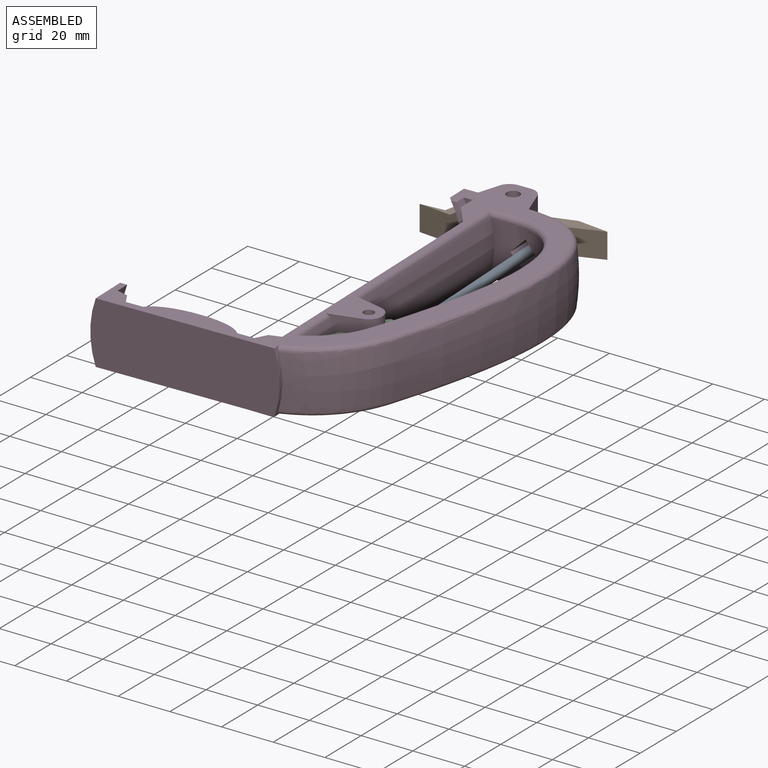
[diagram: assembled view]
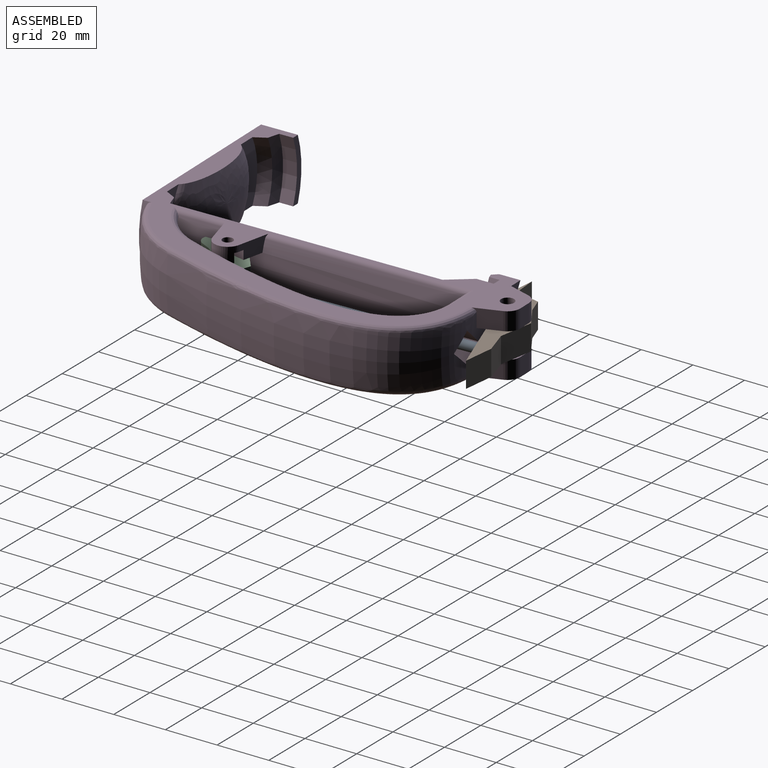
[diagram: assembled view, second angle]
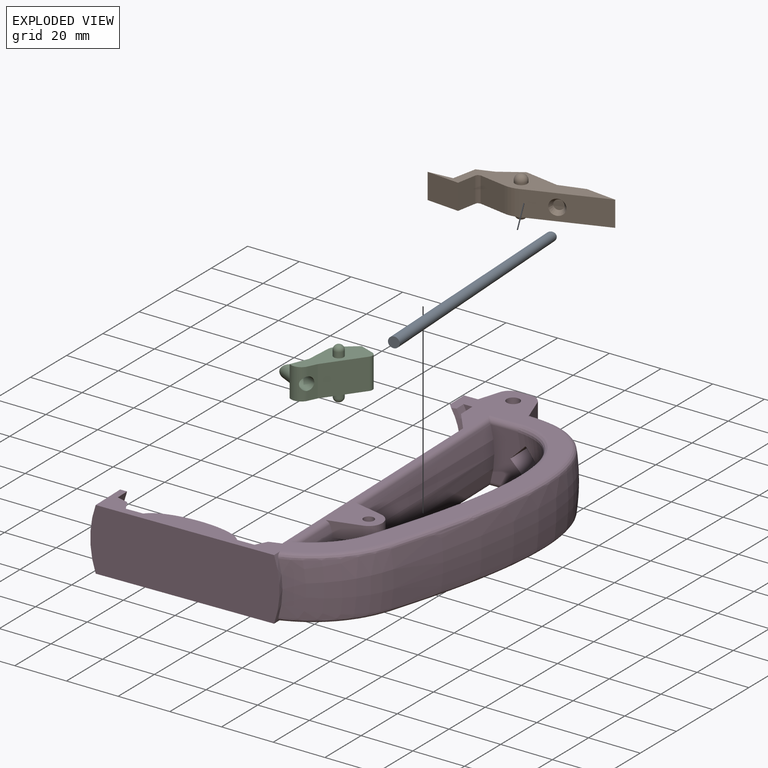
[diagram: exploded view]
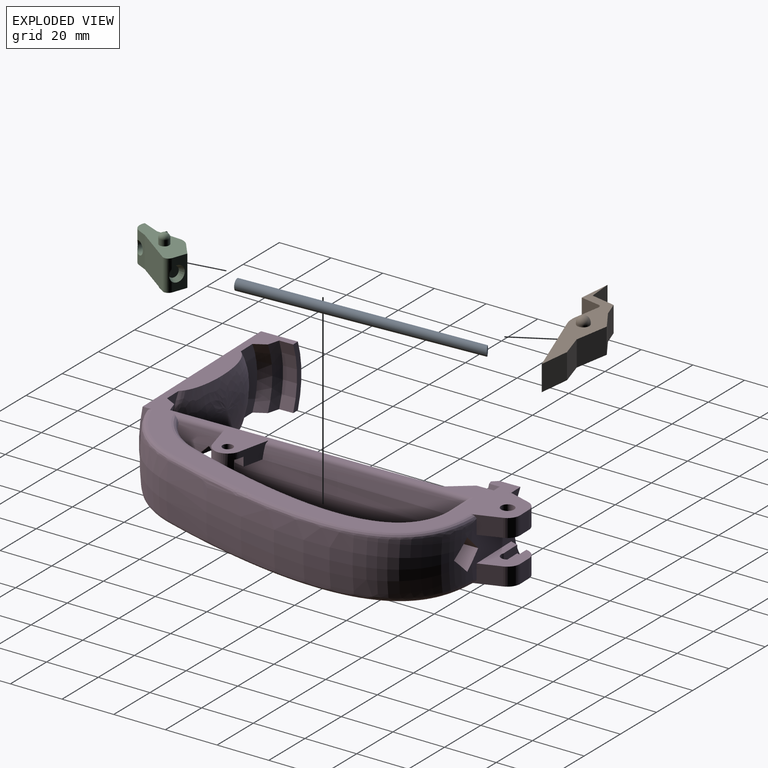
[diagram: exploded view, second angle]
ASSEMBLY  parts=4 mates=4
PART A: 3 faces, bbox 4.7x94.7x4.1 mm
  f0: plane 4.14x4.11mm, normal (0.11,-0.99,0), area 13.4mm2, adj f2
  f1: plane 3.69x3.33mm, normal (-0.43,0.9,0), area 10.7mm2, adj f2
  f2: bspline ~94.74x4.72mm, area 1122.5mm2, adj f0,f1
PART B: 24 faces, bbox 58.9x22.8x15.9 mm
  f0: plane 9.85x0.98mm, normal (0.36,-0.93,0), area 10.4mm2, adj f1,f13,f14,f15
  f1: plane 10.64x9.85mm, normal (-0.08,-1,0), area 105.1mm2, adj f0,f2,f14,f15
  f2: cylinder r=10mm len=9.85mm, axis (0,0,-1), area 51.6mm2, adj f1,f3,f14,f15
  f3: plane 28.57x13.61mm, normal (0.43,-0.9,0), area 283.5mm2, adj f2,f4,f14,f15,f22
  f4: plane 12.05x9.85mm, normal (0.02,1,0), area 118.7mm2, adj f3,f5,f14,f15
  f5: plane 9.85x9.24mm, normal (-0.38,0.93,0), area 98.4mm2, adj f4,f6,f14,f15
  f6: plane 13.49x9.85mm, normal (0.08,1,0), area 133.3mm2, adj f5,f7,f14,f15
  f7: plane 9.85x7.76mm, normal (-0.62,0.79,0), area 97.1mm2, adj f6,f8,f14,f15
  f8: plane 9.85x6.03mm, normal (-0.41,0.91,0), area 65.3mm2, adj f7,f9,f14,f15
  f9: plane 9.85x9.63mm, normal (-0.99,0.11,0), area 95.5mm2, adj f8,f10,f14,f15
  f10: plane 9.85x9.23mm, normal (-0.17,0.98,0), area 92.3mm2, adj f9,f11,f14,f15
  f11: plane 12.63x9.85mm, normal (0,-1,0), area 124.4mm2, adj f10,f12,f14,f15
  f12: plane 9.85x7.7mm, normal (1,-0.09,0), area 76.2mm2, adj f11,f13,f14,f15
  f13: plane 9.85x0.73mm, normal (0.94,-0.35,0), area 7.7mm2, adj f0,f12,f14,f15
  f14: plane 58.87x22.81mm, normal (0,0,1), area 342.6mm2, adj f0,f1,f2,f3,f4,f5,f6,f7
  f15: plane 58.87x22.81mm, normal (0,0,-1), area 342.6mm2, adj f0,f1,f2,f3,f4,f5,f6,f7
  f16: cylinder r=2.35mm len=4.7mm, axis (0,0,1), area 10.3mm2, adj f15,f18
  f17: plane 0.1x0.1mm, normal (0,0,-1), area 0mm2, adj f18
  f18: torus R=0.05mm, axis (0,0,-1), area 34.4mm2, adj f16,f17
  f19: cylinder r=2.35mm len=4.7mm, axis (0,0,-1), area 10.3mm2, adj f14,f21
  f20: plane 0.1x0.1mm, normal (0,0,1), area 0mm2, adj f21
  f21: torus R=0.05mm, axis (0,0,1), area 34.4mm2, adj f19,f20
  f22: cone r=3mm half-angle=30deg, axis (0.43,-0.9,0), area 35.2mm2, adj f3,f23
  f23: plane 3.69x3.33mm, normal (0.43,-0.9,0), area 10.7mm2, adj f22
PART C: 24 faces, bbox 15.8x27.5x20.3 mm
  f0: plane 12x5.91mm, normal (-0.11,0.99,0), area 46.4mm2, adj f1,f7,f8,f9,f22
  f1: plane 12x6.53mm, normal (-0.9,0.44,0), area 87mm2, adj f0,f8,f9,f14
  f2: plane 12x8.6mm, normal (-0.93,-0.38,0), area 111.4mm2, adj f3,f8,f9,f14
  f3: plane 12.07x7.37mm, normal (-1,-0.06,0), area 59.3mm2, adj f2,f4,f8,f9,f10
  f4: plane 12x0.36mm, normal (0,-1,0), area 4.4mm2, adj f3,f8,f9,f15
  f5: plane 12.29x4.1mm, normal (1,0,0), area 36mm2, adj f6,f8,f9,f13,f15
  f6: plane 16.95x12mm, normal (0.98,-0.18,0), area 206.8mm2, adj f5,f7,f8,f9
  f7: cylinder r=2mm len=12mm, axis (0,0,-1), area 41.4mm2, adj f0,f6,f8,f9,f22
  f8: plane 27.13x11.78mm, normal (0,0,1), area 186mm2, adj f0,f1,f2,f3,f4,f5,f6,f7
  f9: plane 27.13x11.78mm, normal (0,0,-1), area 186mm2, adj f0,f1,f2,f3,f4,f5,f6,f7
  f10: cylinder r=3mm len=8.03mm, axis (-1,0,0), area 91.6mm2, adj f3,f11
  f11: plane 6x6mm, normal (-0.71,0.71,0), area 12.2mm2, adj f10,f12
  f12: cylinder r=2.5mm len=7.5mm, axis (-1,0,0), area 78.5mm2, adj f11,f13
  f13: cylinder r=2.5mm len=5.26mm, axis (-1,-0.06,0), area 67.8mm2, adj f5,f12,f15
  f14: cylinder r=5mm len=12mm, axis (0,0,-1), area 50.3mm2, adj f1,f2,f8,f9
  f15: cylinder r=4mm len=12mm, axis (0,0,-1), area 68.4mm2, adj f4,f5,f8,f9,f13
  f16: plane 0.25x0.25mm, normal (0,0,-1), area 0mm2, adj f20
  f17: cylinder r=1.93mm len=3.85mm, axis (0,0,-1), area 26.6mm2, adj f9,f20
  f18: cylinder r=1.93mm len=3.85mm, axis (0,0,-1), area 26.6mm2, adj f8,f21
  f19: plane 0.25x0.25mm, normal (0,0,1), area 0mm2, adj f21
  f20: torus R=0.12mm, axis (0,0,1), area 22.6mm2, adj f16,f17
  f21: torus R=0.12mm, axis (0,0,1), area 22.6mm2, adj f18,f19
  f22: cone r=3mm half-angle=25deg, axis (-0.11,0.99,0), area 35.1mm2, adj f0,f7,f23
  f23: plane 4.13x4.11mm, normal (-0.11,0.99,0), area 13.4mm2, adj f22
PART D: 91 faces, bbox 197.8x230.8x128.9 mm
  f0: plane 12.2x5.93mm, normal (0.24,0.97,0), area 56.7mm2, adj f1,f5,f7,f8,f9,f88,f89,f90
  f1: plane 4.97x4.74mm, normal (0,0,-1), area 13.1mm2, adj f0,f2,f3,f4,f5,f90
  f2: plane 3.5x0mm, normal (0.24,0.97,0), area 0mm2, adj f1,f3,f89,f90
  f3: cylinder r=2mm len=5.85mm, axis (0,0,-1), area 56.1mm2, adj f1,f2,f4,f7,f89
  f4: plane 3.79x3.5mm, normal (-0.97,0.24,0), area 13.7mm2, adj f1,f3,f5,f89
  f5: cylinder r=5.23mm len=10.15mm, axis (0,0,-1), area 75mm2, adj f0,f1,f4,f6,f7,f89
  f6: plane 12.2x5.93mm, normal (0.24,-0.97,0), area 63.6mm2, adj f5,f7,f8,f9,f88,f89
  f7: plane 16.23x16.08mm, normal (0,0,1), area 177.1mm2, adj f0,f3,f5,f6,f8
  f8: plane 16.23x0.11mm, normal (-1,0,0), area 1.9mm2, adj f0,f6,f7,f9
  f9: cylinder r=2mm len=114.18mm, axis (0,-1,0), area 254.7mm2, adj f0,f6,f8,f10,f86,f87,f88
  f10: bspline ~23.75x23.14mm, area 84.9mm2, adj f9,f11,f85,f86,f88
  f11: torus R=22.3mm, axis (0,-1,0), area 459.1mm2, adj f10,f12,f84,f88
  f12: revolved ~92.58x28.38mm, area 1987mm2, adj f11,f13,f79,f80,f81,f82,f83,f85
  f13: bspline ~111.44x23.59mm, area 365.1mm2, adj f12,f14,f78,f79,f84
  f14: plane 145.07x107.35mm, normal (0,0,-1), area 2009.8mm2, adj f13,f15,f20,f35,f36,f37,f38,f39
  f15: cylinder r=2.5mm len=7mm, axis (0,0,1), area 93.2mm2, adj f14,f16,f17,f18,f19
  f16: plane 7.83x4.5mm, normal (0,0,1), area 27.3mm2, adj f15,f17,f19,f39
  f17: plane 7.83x3mm, normal (0,1,0), area 23.5mm2, adj f15,f16,f18,f39
  f18: plane 19.81x11.72mm, normal (0,0,1), area 134.6mm2, adj f15,f17,f19,f35,f36,f37,f38,f39
  f19: plane 6.33x3mm, normal (0,-1,0), area 19mm2, adj f15,f16,f18,f39
  f20: bspline ~125.84x34.01mm, area 360.9mm2, adj f14,f21,f35,f40,f65
  f21: revolved ~105.87x33.04mm, area 2497.8mm2, adj f20,f22,f24,f40,f80,f81,f82,f83
  f22: torus R=22.3mm, axis (0,-1,0), area 839.6mm2, adj f21,f23,f64,f65
  f23: bspline ~30.85x29.21mm, area 105.9mm2, adj f22,f24,f64,f86
  f24: bspline ~125.84x34.01mm, area 360.9mm2, adj f21,f23,f25,f40,f86
  f25: plane 10.39x7.16mm, normal (0.95,0.32,0), area 62mm2, adj f24,f26,f34,f40,f86
  f26: cylinder r=5mm len=7mm, axis (0,0,-1), area 43.7mm2, adj f25,f27,f34,f86
  f27: plane 7x4.79mm, normal (0,1,0), area 33.5mm2, adj f26,f28,f34,f86
  f28: cylinder r=5mm len=7mm, axis (0,0,-1), area 43.7mm2, adj f27,f29,f34,f86
  f29: plane 8.3x7mm, normal (-0.95,0.32,0), area 47mm2, adj f28,f30,f32,f33,f34,f40,f86
  f30: plane 7.83x3mm, normal (0,1,0), area 23.5mm2, adj f29,f31,f32,f34
  f31: cylinder r=2.5mm len=7mm, axis (0,0,-1), area 93.2mm2, adj f30,f32,f33,f34,f86
  f32: plane 7.83x4.5mm, normal (0,0,-1), area 27.3mm2, adj f29,f30,f31,f33
  f33: plane 6.33x3mm, normal (0,-1,0), area 19mm2, adj f29,f31,f32,f34
  f34: plane 19.81x11.72mm, normal (0,0,-1), area 134.6mm2, adj f25,f26,f27,f28,f29,f30,f31,f33
  f35: plane 10.4x7.16mm, normal (0.95,0.32,0), area 62mm2, adj f14,f18,f20,f36,f40
  f36: cylinder r=5mm len=7mm, axis (0,0,1), area 43.7mm2, adj f14,f18,f35,f37
  f37: plane 7x4.79mm, normal (0,1,0), area 33.5mm2, adj f14,f18,f36,f38
  f38: cylinder r=5mm len=7mm, axis (0,0,1), area 43.7mm2, adj f14,f18,f37,f39
  f39: plane 8.3x7mm, normal (-0.95,0.32,0), area 47mm2, adj f14,f16,f17,f18,f19,f38,f40
  f40: plane 28.3x24.29mm, normal (0,1,0), area 306.1mm2, adj f14,f18,f20,f21,f24,f25,f29,f34
  f41: cylinder r=21.5mm len=24mm, axis (0,-1,0), area 205.7mm2, adj f14,f40,f42,f86
  f42: cone r=23mm half-angle=36.9deg, axis (0,-1,0), area 63.4mm2, adj f14,f41,f43,f86
  f43: cone r=24.5mm half-angle=71.6deg, axis (0,1,0), area 39.8mm2, adj f14,f42,f44,f86
  f44: cylinder r=24.5mm len=24mm, axis (0,-1,0), area 100.3mm2, adj f14,f43,f45,f86
  f45: plane 24x6.14mm, normal (0,-1,0), area 74.8mm2, adj f14,f44,f46,f86
  f46: cylinder r=27.5mm len=24mm, axis (0,-1,0), area 162.8mm2, adj f14,f45,f47,f86
  f47: cone r=33.5mm half-angle=34.7deg, axis (0,-1,0), area 262.1mm2, adj f14,f46,f48,f86
  f48: cylinder r=33.5mm len=103.61mm, axis (0,-1,0), area 2478.9mm2, adj f14,f47,f49,f50,f51,f52,f53,f86
  f49: plane 5.68x5.68mm, normal (0,0.71,0.71), area 20.1mm2, adj f48,f50,f52,f88
  f50: plane 5.68x5.68mm, normal (0,-0.71,0.71), area 20.1mm2, adj f48,f49,f51,f88
  f51: plane 5.68x5.68mm, normal (0,-0.71,-0.71), area 20.1mm2, adj f48,f50,f52,f88
  f52: plane 5.68x5.68mm, normal (0,0.71,-0.71), area 20.1mm2, adj f48,f49,f51,f88
  f53: cone r=33.5mm half-angle=71.6deg, axis (0,1,0), area 106.8mm2, adj f14,f48,f54,f86
  f54: cone r=29.4mm half-angle=26.6deg, axis (0,1,0), area 119.3mm2, adj f14,f53,f55,f86
  f55: plane 24x9.41mm, normal (0,1,0), area 144.4mm2, adj f14,f54,f56,f86
  f56: revolved ~42.96x42.91mm, area 576.8mm2, adj f14,f55,f57,f86
  f57: plane 110x95.41mm, normal (0,1,0), area 144.4mm2, adj f14,f56,f58,f86
  f58: cone r=29.4mm half-angle=26.6deg, axis (0,1,0), area 119.3mm2, adj f14,f57,f59,f86
  f59: cone r=33.5mm half-angle=71.6deg, axis (0,1,0), area 106.8mm2, adj f14,f58,f60,f86
  f60: cylinder r=33.5mm len=24mm, axis (0,-1,0), area 130.9mm2, adj f14,f59,f61,f86
  f61: plane 24x4.72mm, normal (0,1,0), area 61.3mm2, adj f14,f60,f62,f86
  f62: cylinder r=36mm len=24mm, axis (0,-1,0), area 342.6mm2, adj f14,f61,f63,f86
  f63: plane 72x24mm, normal (0,-1,0), area 1695.4mm2, adj f14,f62,f64,f86
  f64: cylinder r=36mm len=24mm, axis (0,-1,0), area 44.5mm2, adj f14,f22,f23,f63,f65,f86
  f65: bspline ~30.85x29.21mm, area 105.9mm2, adj f14,f20,f22,f64
  f66: cylinder r=2mm len=114.18mm, axis (0,-1,0), area 254.7mm2, adj f14,f67,f76,f77,f78,f84,f88
  f67: plane 12.2x5.93mm, normal (0.24,-0.97,0), area 63.6mm2, adj f66,f68,f74,f75,f76,f88
  f68: plane 15.07x13.77mm, normal (0,0,1), area 127.8mm2, adj f67,f69,f71,f72,f73,f74,f77,f88
  f69: plane 3.79x3.5mm, normal (-0.97,0.24,0), area 13.7mm2, adj f68,f70,f73,f74
  f70: plane 4.97x4.74mm, normal (0,0,1), area 13.1mm2, adj f69,f71,f72,f73,f74,f77
  f71: plane 4.85x3.5mm, normal (0.97,-0.24,0), area 17.5mm2, adj f68,f70,f72,f77
  f72: plane 3.5x0mm, normal (0.24,0.97,0), area 0mm2, adj f68,f70,f71,f73
  f73: cylinder r=2mm len=5.85mm, axis (0,0,1), area 56.1mm2, adj f68,f69,f70,f72,f75
  f74: cylinder r=5.23mm len=10.15mm, axis (0,0,1), area 75mm2, adj f67,f68,f69,f70,f75,f77
  f75: plane 16.23x16.08mm, normal (0,0,-1), area 177.1mm2, adj f67,f73,f74,f76,f77
  f76: plane 16.23x0.11mm, normal (-1,0,0), area 1.9mm2, adj f66,f67,f75,f77
  f77: plane 12.2x5.93mm, normal (0.24,0.97,0), area 56.7mm2, adj f66,f68,f70,f71,f74,f75,f76,f88
  f78: cylinder r=2mm len=12.48mm, axis (-1,0,0), area 35.5mm2, adj f13,f14,f66,f79,f88
  f79: plane 20x11.26mm, normal (0,-1,0), area 187mm2, adj f12,f13,f78,f80,f83,f85,f87,f88
  f80: plane 10.37x6.09mm, normal (0.71,0,-0.71), area 85.1mm2, adj f12,f21,f40,f79,f81,f83
  f81: plane 12.44x6.62mm, normal (-0.71,0,-0.71), area 88.1mm2, adj f12,f21,f80,f82
  f82: plane 12.44x6.62mm, normal (-0.71,0,0.71), area 88.1mm2, adj f12,f21,f81,f83
  f83: plane 10.37x6.09mm, normal (0.71,0,0.71), area 85.1mm2, adj f12,f21,f40,f79,f80,f82
  f84: bspline ~23.75x23.14mm, area 84.9mm2, adj f11,f13,f14,f66,f88
  f85: bspline ~111.44x23.59mm, area 365.1mm2, adj f10,f12,f79,f86,f87
  f86: plane 230.79x193.08mm, normal (0,0,1), area 2009.8mm2, adj f9,f10,f23,f24,f25,f26,f27,f28
  f87: cylinder r=2mm len=12.48mm, axis (-1,0,0), area 35.5mm2, adj f9,f79,f85,f86,f88
  f88: cylinder r=36mm len=109.37mm, axis (0,-1,0), area 2140.4mm2, adj f0,f6,f9,f10,f11,f49,f50,f51
  f89: plane 15.07x13.77mm, normal (0,0,-1), area 127.8mm2, adj f0,f2,f3,f4,f5,f6,f88,f90
  f90: plane 4.85x3.5mm, normal (0.97,-0.24,0), area 17.5mm2, adj f0,f1,f2,f89
PLACE A rot(axis=(-0.01,0,1),3.5deg) t=(100.24,11.82,2.23)mm
PLACE B rot(axis=(0,0,-1),5.3deg) t=(88.87,16.02,2.17)mm
PLACE C rot(axis=(0,0,-1),25.8deg) t=(112.22,22.51,2.24)mm
PLACE D rot(axis=(0,0,1),1.4deg) t=(97.19,14.22,2.09)mm
MATE revolute D.f3 <-> C.f17  axis (0,0,-1) through (121.81,-12.63,8.24)mm
MATE revolute D.f15 <-> B.f16  axis (0,0,-1) through (108.41,86.28,7.09)mm
MATE ball A.f0 <-> C.f22  axis (0.17,-0.99,0) through (126.65,-5.71,2.24)mm
MATE ball A.f1 <-> B.f22  axis (-0.48,0.87,0) through (121.9,87.9,2.17)mm
